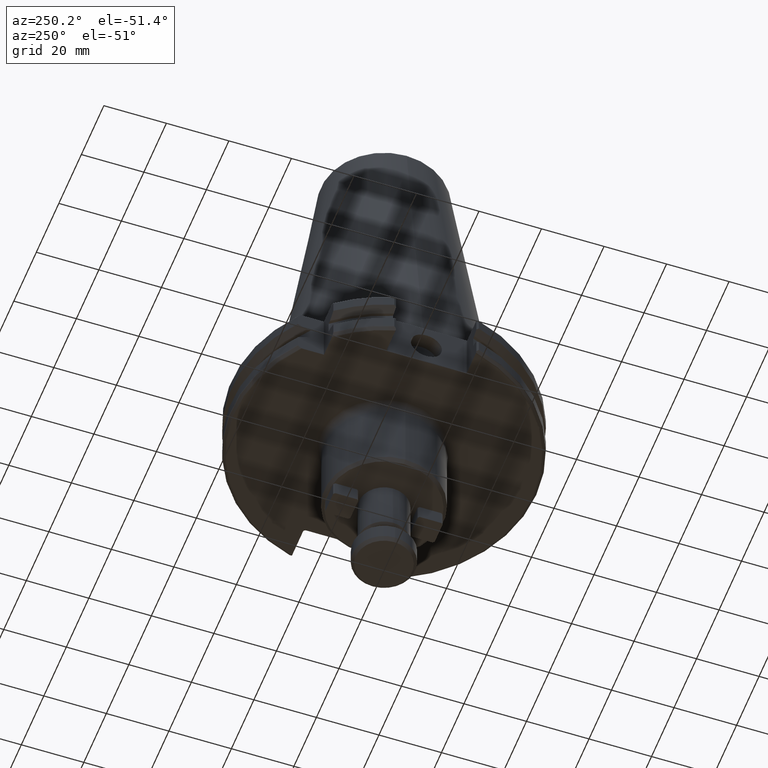
[diagram: clean part render]
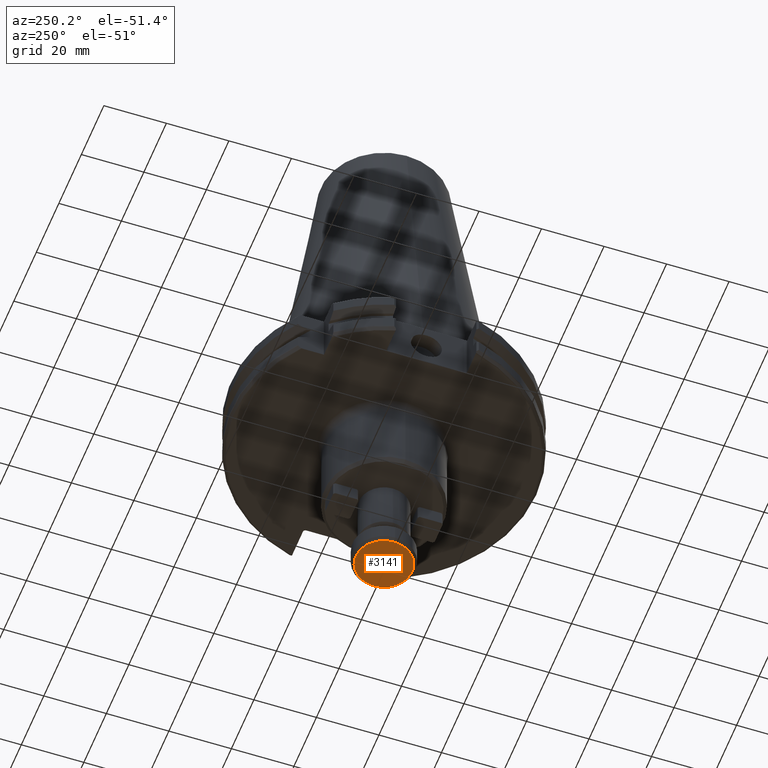
[diagram: same view with one face highlighted and labeled with its STEP entity id]
A machine part, auxiliary view. The second image highlights one B-rep face of the part: STEP entity #3141.
In plain terms, the highlighted planar face has unit normal (0, 0, -1).
Its self-contained STEP definition (entity closure, byte-faithful):
#192 = DIRECTION ( 'NONE',  ( 0.0000000000000000000, 0.0000000000000000000, -1.000000000000000000 ) ) ;
#211 = CARTESIAN_POINT ( 'NONE',  ( -9.000000000000001800, 1.163414459189985700E-015, -72.00000000000001400 ) ) ;
#245 = AXIS2_PLACEMENT_3D ( 'NONE', #3201, #192, #2337 ) ;
#459 = CIRCLE ( 'NONE', #2125, 9.000000000000001800 ) ;
#495 = EDGE_CURVE ( 'NONE', #3120, #2306, #596, .T. ) ;
#596 = CIRCLE ( 'NONE', #1644, 9.000000000000001800 ) ;
#657 = ORIENTED_EDGE ( 'NONE', *, *, #2522, .F. ) ;
#704 = EDGE_LOOP ( 'NONE', ( #1251, #657 ) ) ;
#742 = DIRECTION ( 'NONE',  ( 1.000000000000000000, 0.0000000000000000000, 0.0000000000000000000 ) ) ;
#878 = CARTESIAN_POINT ( 'NONE',  ( 0.0000000000000000000, 0.0000000000000000000, -72.00000000000001400 ) ) ;
#1175 = DIRECTION ( 'NONE',  ( 1.000000000000000000, 0.0000000000000000000, 0.0000000000000000000 ) ) ;
#1251 = ORIENTED_EDGE ( 'NONE', *, *, #495, .F. ) ;
#1644 = AXIS2_PLACEMENT_3D ( 'NONE', #3136, #2556, #742 ) ;
#2125 = AXIS2_PLACEMENT_3D ( 'NONE', #878, #2974, #1175 ) ;
#2306 = VERTEX_POINT ( 'NONE', #211 ) ;
#2337 = DIRECTION ( 'NONE',  ( -1.000000000000000000, 0.0000000000000000000, -0.0000000000000000000 ) ) ;
#2438 = FACE_OUTER_BOUND ( 'NONE', #704, .T. ) ;
#2522 = EDGE_CURVE ( 'NONE', #2306, #3120, #459, .T. ) ;
#2556 = DIRECTION ( 'NONE',  ( -0.0000000000000000000, -0.0000000000000000000, 1.000000000000000000 ) ) ;
#2974 = DIRECTION ( 'NONE',  ( -0.0000000000000000000, -0.0000000000000000000, 1.000000000000000000 ) ) ;
#3120 = VERTEX_POINT ( 'NONE', #3463 ) ;
#3136 = CARTESIAN_POINT ( 'NONE',  ( 0.0000000000000000000, 0.0000000000000000000, -72.00000000000001400 ) ) ;
#3141 = ADVANCED_FACE ( 'NONE', ( #2438 ), #3794, .T. ) ;
#3201 = CARTESIAN_POINT ( 'NONE',  ( 0.0000000000000000000, -9.000000000000001800, -72.00000000000001400 ) ) ;
#3463 = CARTESIAN_POINT ( 'NONE',  ( 9.000000000000001800, 0.0000000000000000000, -72.00000000000001400 ) ) ;
#3794 = PLANE ( 'NONE',  #245 ) ;